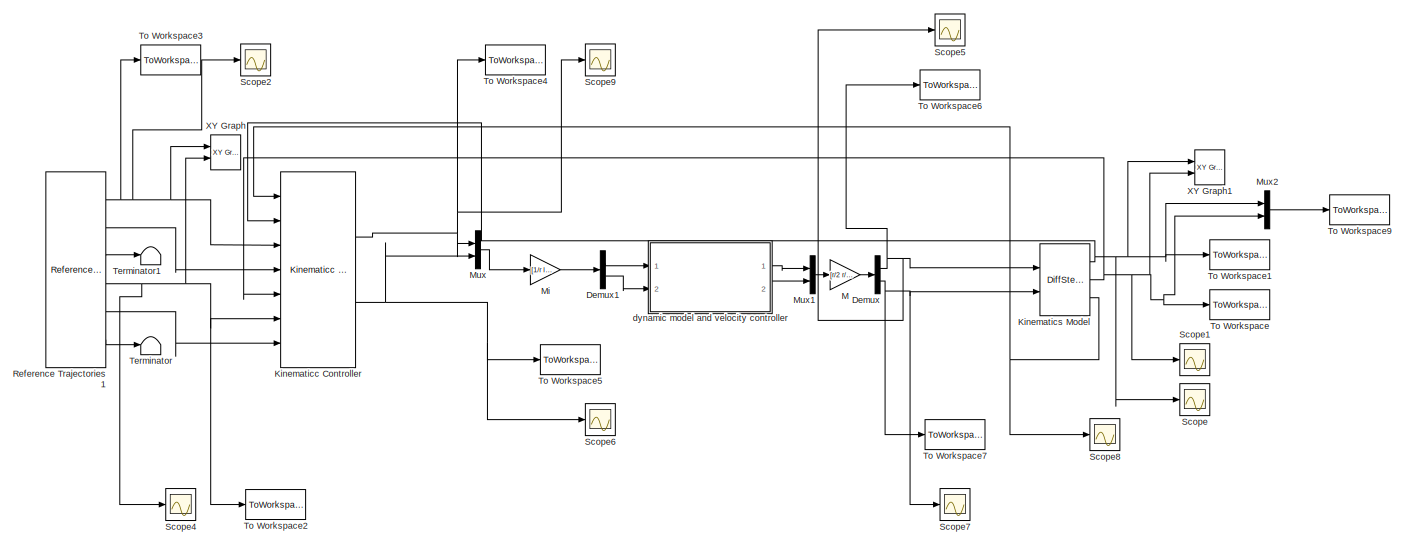
[diagram: root canvas - part 1/2, full width, middle band]
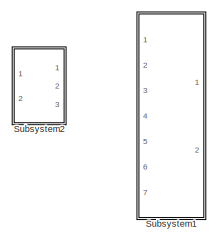
[diagram: root canvas - part 2/2, bottom left region]
MODEL slx_24f04d6664d5
KIND model
CONFIG AbsTol = auto
CONFIG EnableMultiTasking = off
CONFIG FixedStep = auto
CONFIG MaxStep = auto
CONFIG MinStep = auto
CONFIG RelTol = 1e-3
CONFIG SampleTimeConstraint = Unconstrained
CONFIG Solver = VariableStepAuto
CONFIG SolverName = VariableStepAuto
CONFIG StartTime = 0.0
CONFIG StopTime = 80
BLOCK [Reference]  Kinematics Model  REF=DiffSteer_model/DiffSteer
Kinematics
  Ports = [2, 3]
  SourceBlock = DiffSteer_model/DiffSteer\nKinematics
BLOCK [Demux] Demux
  DisplayOption = bar
  Outputs = 2
  Ports = [1, 2]
BLOCK [Demux] Demux1
  DisplayOption = bar
  Outputs = 2
  Ports = [1, 2]
BLOCK [Reference] Kinematicc Controller  REF=Controllers/Kinematicc
Controller
  Ports = [7, 2]
  SourceBlock = Controllers/Kinematicc\nController
  SourceType = Kinematic Controller
BLOCK [Gain] M
  Gain = [r/2 r/2;r/l -r/l]
  Multiplication = Matrix(K*u)
  OutDataTypeStr = Inherit: Inherit via internal rule
  ParamDataTypeStr = Inherit: Inherit via internal rule
  SaturateOnIntegerOverflow = off
BLOCK [Gain] Mi
  Gain = [1/r  l/(2*r); 1/r  -l/(2*r)]
  Multiplication = Matrix(K*u)
  OutDataTypeStr = Inherit: Inherit via internal rule
  ParamDataTypeStr = Inherit: Inherit via internal rule
  SaturateOnIntegerOverflow = off
BLOCK [Mux] Mux
  DisplayOption = bar
  Inputs = 2
  Ports = [2, 1]
BLOCK [Mux] Mux1
  DisplayOption = bar
  Inputs = 2
  Ports = [2, 1]
BLOCK [Mux] Mux2
  DisplayOption = bar
  Inputs = 2
  Ports = [2, 1]
BLOCK [Reference] Reference Trajectories1  REF=Controllers/Reference
Trajectories
  Ports = [0, 6]
  SourceBlock = Controllers/Reference\nTrajectories
  SourceType = Reference Trajectories
BLOCK [Scope] Scope
  NumInputPorts = 1
  Ports = [1]
  ScopeSpecificationString = Simulink.scopes.TimeScopeBlockCfg('CurrentConfiguration', extmgr.ConfigurationSet(extmgr.Configuration('Core','General UI',true),extmgr.Configuration('Core','Source UI',true),extmgr.Configuration('Sources','WiredSimulink',true,'DataLoggingVariableName','ScopeData1'),extmgr.Configuration('Visuals','Time Domain',true,'SerializedDisplays',{struct('MinYLimReal','-1.21331','MaxYLimReal','0.91848','YLab...<+1449ch>
BLOCK [Scope] Scope1
  NumInputPorts = 1
  Ports = [1]
  ScopeSpecificationString = Simulink.scopes.TimeScopeBlockCfg('CurrentConfiguration', extmgr.ConfigurationSet(extmgr.Configuration('Core','General UI',true),extmgr.Configuration('Core','Source UI',true),extmgr.Configuration('Sources','WiredSimulink',true,'DataLoggingVariableName','ScopeData2','DataLoggingLimitDataPoints',true,'DataLoggingMaxPoints','50000000'),extmgr.Configuration('Visuals','Time Domain',true,'SerializedDisp...<+1498ch>
BLOCK [Scope] Scope2
  NumInputPorts = 1
  Ports = [1]
  ScopeSpecificationString = Simulink.scopes.TimeScopeBlockCfg('CurrentConfiguration', extmgr.ConfigurationSet(extmgr.Configuration('Core','General UI',true),extmgr.Configuration('Core','Source UI',true),extmgr.Configuration('Sources','WiredSimulink',true,'DataLoggingVariableName','ScopeData3','DataLoggingLimitDataPoints',true,'DataLoggingMaxPoints','1000000'),extmgr.Configuration('Visuals','Time Domain',true,'SerializedDispl...<+1470ch>
BLOCK [Scope] Scope4
  NumInputPorts = 1
  Ports = [1]
  ScopeSpecificationString = Simulink.scopes.TimeScopeBlockCfg('CurrentConfiguration', extmgr.ConfigurationSet(extmgr.Configuration('Core','General UI',true),extmgr.Configuration('Core','Source UI',true),extmgr.Configuration('Sources','WiredSimulink',true,'DataLoggingVariableName','ScopeData5','DataLoggingLimitDataPoints',true,'DataLoggingMaxPoints','1000000'),extmgr.Configuration('Visuals','Time Domain',true,'SerializedDispl...<+1470ch>
BLOCK [Scope] Scope5
  NumInputPorts = 1
  Ports = [1]
  ScopeSpecificationString = Simulink.scopes.TimeScopeBlockCfg('CurrentConfiguration', extmgr.ConfigurationSet(extmgr.Configuration('Core','General UI',true),extmgr.Configuration('Core','Source UI',true),extmgr.Configuration('Sources','WiredSimulink',true,'DataLoggingVariableName','ScopeData6','DataLoggingLimitDataPoints',true,'DataLoggingMaxPoints','1000000'),extmgr.Configuration('Visuals','Time Domain',true,'SerializedDispl...<+1504ch>
BLOCK [Scope] Scope6
  NumInputPorts = 1
  Ports = [1]
  ScopeSpecificationString = Simulink.scopes.TimeScopeBlockCfg('CurrentConfiguration', extmgr.ConfigurationSet(extmgr.Configuration('Core','General UI',true),extmgr.Configuration('Core','Source UI',true),extmgr.Configuration('Sources','WiredSimulink',true,'DataLoggingVariableName','ScopeData7','DataLoggingLimitDataPoints',true,'DataLoggingMaxPoints','1000000'),extmgr.Configuration('Visuals','Time Domain',true,'SerializedDispl...<+1491ch>
BLOCK [Scope] Scope7
  NumInputPorts = 1
  Ports = [1]
  ScopeSpecificationString = Simulink.scopes.TimeScopeBlockCfg('CurrentConfiguration', extmgr.ConfigurationSet(extmgr.Configuration('Core','General UI',true),extmgr.Configuration('Core','Source UI',true),extmgr.Configuration('Sources','WiredSimulink',true,'DataLoggingVariableName','ScopeData8','DataLoggingLimitDataPoints',true,'DataLoggingMaxPoints','1000000'),extmgr.Configuration('Visuals','Time Domain',true,'SerializedDispl...<+1483ch>
BLOCK [Scope] Scope8
  NumInputPorts = 1
  Ports = [1]
  ScopeSpecificationString = Simulink.scopes.TimeScopeBlockCfg('CurrentConfiguration', extmgr.ConfigurationSet(extmgr.Configuration('Core','General UI',true),extmgr.Configuration('Core','Source UI',true),extmgr.Configuration('Sources','WiredSimulink',true,'DataLoggingVariableName','ScopeData13'),extmgr.Configuration('Visuals','Time Domain',true,'SerializedDisplays',{struct('MinYLimReal','-1.16597','MaxYLimReal','10.49355','YL...<+1458ch>
BLOCK [Scope] Scope9
  NumInputPorts = 1
  Ports = [1]
  ScopeSpecificationString = Simulink.scopes.TimeScopeBlockCfg('CurrentConfiguration', extmgr.ConfigurationSet(extmgr.Configuration('Core','General UI',true),extmgr.Configuration('Core','Source UI',true),extmgr.Configuration('Sources','WiredSimulink',true,'DataLoggingVariableName','ScopeData10','DataLoggingLimitDataPoints',true,'DataLoggingMaxPoints','1000000'),extmgr.Configuration('Visuals','Time Domain',true,'SerializedDisp...<+1521ch>
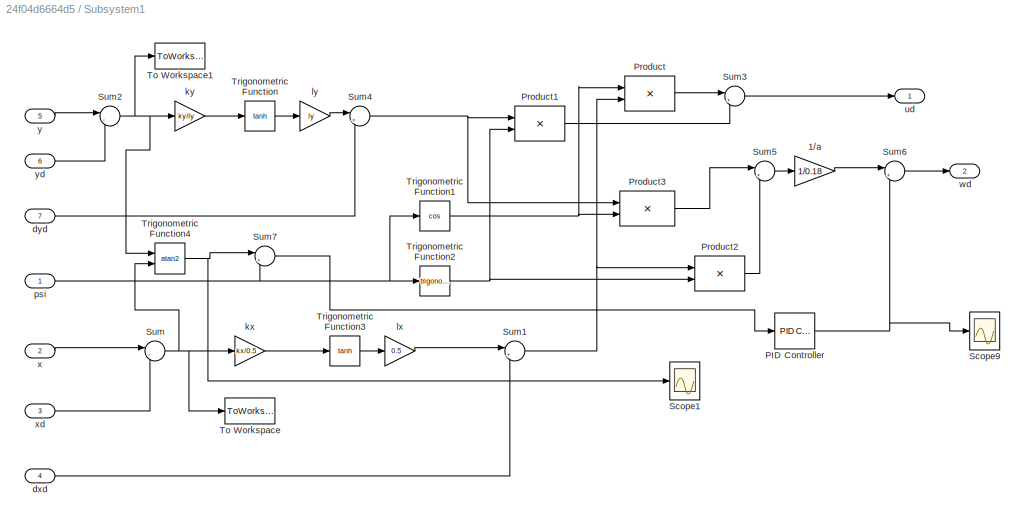
BLOCK [SubSystem] Subsystem1
  Commented = on
  Ports = [7, 2]
  RequestExecContextInheritance = off
  Variant = off
BLOCK [Gain] Subsystem1/1//a
  Commented = on
  Gain = 1/0.18
BLOCK [Reference] Subsystem1/PID Controller  REF=simulink/Continuous/PID Controller
  Ports = [1, 1]
  SourceBlock = simulink/Continuous/PID Controller
  SourceType = PID 1dof
BLOCK [Product] Subsystem1/Product
  InputSameDT = off
  Ports = [2, 1]
  RndMeth = Floor
BLOCK [Product] Subsystem1/Product1
  InputSameDT = off
  Ports = [2, 1]
  RndMeth = Floor
BLOCK [Product] Subsystem1/Product2
  InputSameDT = off
  Ports = [2, 1]
  RndMeth = Floor
BLOCK [Product] Subsystem1/Product3
  InputSameDT = off
  Ports = [2, 1]
  RndMeth = Floor
BLOCK [Scope] Subsystem1/Scope1
  NumInputPorts = 1
  Ports = [1]
  ScopeSpecificationString = Simulink.scopes.TimeScopeBlockCfg('CurrentConfiguration', extmgr.ConfigurationSet(extmgr.Configuration('Core','General UI',true),extmgr.Configuration('Core','Source UI',true),extmgr.Configuration('Sources','WiredSimulink',true,'DataLoggingVariableName','ScopeData12','DataLoggingLimitDataPoints',true,'DataLoggingMaxPoints','1000000'),extmgr.Configuration('Visuals','Time Domain',true,'SerializedDisp...<+1521ch>
BLOCK [Scope] Subsystem1/Scope9
  NumInputPorts = 1
  Ports = [1]
  ScopeSpecificationString = Simulink.scopes.TimeScopeBlockCfg('CurrentConfiguration', extmgr.ConfigurationSet(extmgr.Configuration('Core','General UI',true),extmgr.Configuration('Core','Source UI',true),extmgr.Configuration('Sources','WiredSimulink',true,'DataLoggingVariableName','ScopeData9','DataLoggingLimitDataPoints',true,'DataLoggingMaxPoints','1000000'),extmgr.Configuration('Visuals','Time Domain',true,'SerializedDispl...<+1517ch>
BLOCK [Sum] Subsystem1/Sum
  IconShape = round
  InputSameDT = off
  Inputs = |-+
  OutDataTypeStr = Inherit: Inherit via internal rule
  Ports = [2, 1]
BLOCK [Sum] Subsystem1/Sum1
  IconShape = round
  InputSameDT = off
  Inputs = |++
  OutDataTypeStr = Inherit: Inherit via internal rule
  Ports = [2, 1]
BLOCK [Sum] Subsystem1/Sum2
  IconShape = round
  InputSameDT = off
  Inputs = |-+
  OutDataTypeStr = Inherit: Inherit via internal rule
  Ports = [2, 1]
BLOCK [Sum] Subsystem1/Sum3
  IconShape = round
  InputSameDT = off
  Inputs = |++
  OutDataTypeStr = Inherit: Inherit via internal rule
  Ports = [2, 1]
BLOCK [Sum] Subsystem1/Sum4
  IconShape = round
  InputSameDT = off
  Inputs = |++
  OutDataTypeStr = Inherit: Inherit via internal rule
  Ports = [2, 1]
BLOCK [Sum] Subsystem1/Sum5
  IconShape = round
  InputSameDT = off
  Inputs = |+-
  OutDataTypeStr = Inherit: Inherit via internal rule
  Ports = [2, 1]
BLOCK [Sum] Subsystem1/Sum6
  IconShape = round
  InputSameDT = off
  Inputs = |++
  OutDataTypeStr = Inherit: Inherit via internal rule
  Ports = [2, 1]
BLOCK [Sum] Subsystem1/Sum7
  IconShape = round
  InputSameDT = off
  Inputs = |+-
  OutDataTypeStr = Inherit: Inherit via internal rule
  Ports = [2, 1]
BLOCK [ToWorkspace] Subsystem1/To Workspace
  MaxDataPoints = inf
  Ports = [1]
  SampleTime = -1
  VariableName = erro_x1c
BLOCK [ToWorkspace] Subsystem1/To Workspace1
  MaxDataPoints = inf
  Ports = [1]
  SampleTime = -1
  VariableName = erro_y1c
BLOCK [Trigonometry] Subsystem1/Trigonometric Function
  Operator = tanh
  Ports = [1, 1]
BLOCK [Trigonometry] Subsystem1/Trigonometric Function1
  Operator = cos
  Ports = [1, 1]
BLOCK [Trigonometry] Subsystem1/Trigonometric Function2
  Ports = [1, 1]
BLOCK [Trigonometry] Subsystem1/Trigonometric Function3
  Operator = tanh
  Ports = [1, 1]
BLOCK [Trigonometry] Subsystem1/Trigonometric Function4
  Operator = atan2
  Ports = [2, 1]
BLOCK [Inport] Subsystem1/dxd
  IconDisplay = Port number
  Port = 4
BLOCK [Inport] Subsystem1/dyd
  IconDisplay = Port number
  Port = 7
BLOCK [Gain] Subsystem1/kx
  Gain = kx/0.5
BLOCK [Gain] Subsystem1/ky
  Gain = ky/ly
BLOCK [Gain] Subsystem1/lx
  Gain = 0.5
BLOCK [Gain] Subsystem1/ly
  Gain = ly
BLOCK [Inport] Subsystem1/psi
  IconDisplay = Port number
BLOCK [Outport] Subsystem1/ud
  IconDisplay = Port number
BLOCK [Outport] Subsystem1/wd
  IconDisplay = Port number
  Port = 2
BLOCK [Inport] Subsystem1/x
  IconDisplay = Port number
  Port = 2
BLOCK [Inport] Subsystem1/xd
  IconDisplay = Port number
  Port = 3
BLOCK [Inport] Subsystem1/y
  IconDisplay = Port number
  Port = 5
BLOCK [Inport] Subsystem1/yd
  IconDisplay = Port number
  Port = 6
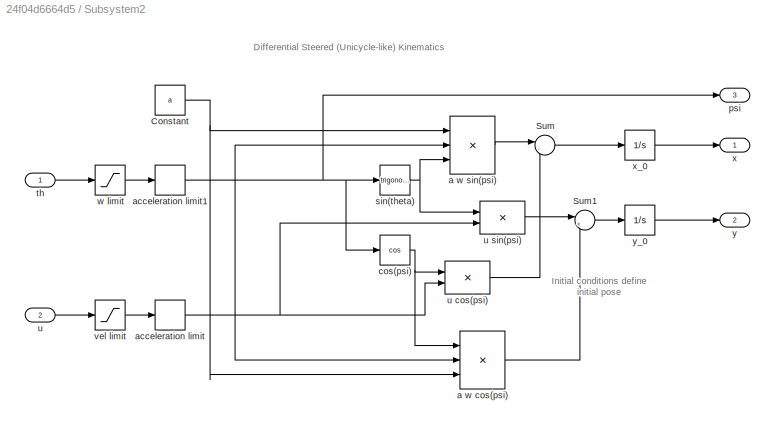
BLOCK [SubSystem] Subsystem2
  Commented = on
  Ports = [2, 3]
  RequestExecContextInheritance = off
  Variant = off
BLOCK [Constant] Subsystem2/Constant
  Value = a
BLOCK [Sum] Subsystem2/Sum
  IconShape = round
  InputSameDT = off
  Inputs = |-+
  OutDataTypeStr = Inherit: Inherit via internal rule
  Ports = [2, 1]
BLOCK [Sum] Subsystem2/Sum1
  IconShape = round
  InputSameDT = off
  Inputs = |++
  OutDataTypeStr = Inherit: Inherit via internal rule
  Ports = [2, 1]
BLOCK [Product] Subsystem2/a w cos(psi)
  Commented = on
  InputSameDT = off
  Inputs = 3
  Ports = [3, 1]
  RndMeth = Floor
BLOCK [Product] Subsystem2/a w sin(psi)
  Commented = on
  InputSameDT = off
  Inputs = 3
  Ports = [3, 1]
  RndMeth = Floor
BLOCK [RateLimiter] Subsystem2/acceleration limit
  Commented = through
  FallingSlewLimit = -dumax
  RisingSlewLimit = dumax
  SampleTimeMode = inherited
BLOCK [RateLimiter] Subsystem2/acceleration limit1
  Commented = through
  FallingSlewLimit = -dwmax
  RisingSlewLimit = dwmax
  SampleTimeMode = inherited
BLOCK [Trigonometry] Subsystem2/cos(psi)
  Operator = cos
  Ports = [1, 1]
BLOCK [Outport] Subsystem2/psi
  IconDisplay = Port number
  Port = 3
BLOCK [Trigonometry] Subsystem2/sin(theta)
  Ports = [1, 1]
BLOCK [Inport] Subsystem2/th 
  IconDisplay = Port number
BLOCK [Inport] Subsystem2/u
  IconDisplay = Port number
  Port = 2
BLOCK [Product] Subsystem2/u cos(psi)
  InputSameDT = off
  Ports = [2, 1]
  RndMeth = Floor
BLOCK [Product] Subsystem2/u sin(psi)
  InputSameDT = off
  Ports = [2, 1]
  RndMeth = Floor
BLOCK [Saturate] Subsystem2/vel limit
  Commented = through
  InputPortMap = u0
  LowerLimit = -umax
  Ports = [1, 1]
  UpperLimit = umax
BLOCK [Saturate] Subsystem2/w limit
  Commented = through
  InputPortMap = u0
  LowerLimit = -wmax
  Ports = [1, 1]
  UpperLimit = wmax
BLOCK [Outport] Subsystem2/x
  IconDisplay = Port number
BLOCK [Integrator] Subsystem2/x_0
  Ports = [1, 1]
BLOCK [Outport] Subsystem2/y
  IconDisplay = Port number
  Port = 2
BLOCK [Integrator] Subsystem2/y_0
  Ports = [1, 1]
BLOCK [Terminator] Terminator
BLOCK [Terminator] Terminator1
BLOCK [ToWorkspace] To Workspace
  MaxDataPoints = inf
  Ports = [1]
  SampleTime = -1
  VariableName = y
BLOCK [ToWorkspace] To Workspace1
  MaxDataPoints = inf
  Ports = [1]
  SampleTime = -1
  VariableName = x
BLOCK [ToWorkspace] To Workspace2
  MaxDataPoints = inf
  Ports = [1]
  SampleTime = -1
  VariableName = yd
BLOCK [ToWorkspace] To Workspace3
  MaxDataPoints = inf
  Ports = [1]
  SampleTime = -1
  VariableName = xd
BLOCK [ToWorkspace] To Workspace4
  MaxDataPoints = inf
  Ports = [1]
  SampleTime = -1
  VariableName = ud
BLOCK [ToWorkspace] To Workspace5
  MaxDataPoints = inf
  Ports = [1]
  SampleTime = -1
  VariableName = wd
BLOCK [ToWorkspace] To Workspace6
  MaxDataPoints = inf
  Ports = [1]
  SampleTime = -1
  VariableName = u
BLOCK [ToWorkspace] To Workspace7
  MaxDataPoints = inf
  Ports = [1]
  SampleTime = -1
  VariableName = w
BLOCK [ToWorkspace] To Workspace9
  MaxDataPoints = inf
  Ports = [1]
  SampleTime = -1
  VariableName = xy
BLOCK [Reference] XY Graph  REF=simulink/Sinks/XY Graph
  Ports = [2]
  SourceBlock = simulink/Sinks/XY Graph
  SourceType = XY scope.
BLOCK [Reference] XY Graph1  REF=simulink/Sinks/XY Graph
  Ports = [2]
  SourceBlock = simulink/Sinks/XY Graph
  SourceType = XY scope.
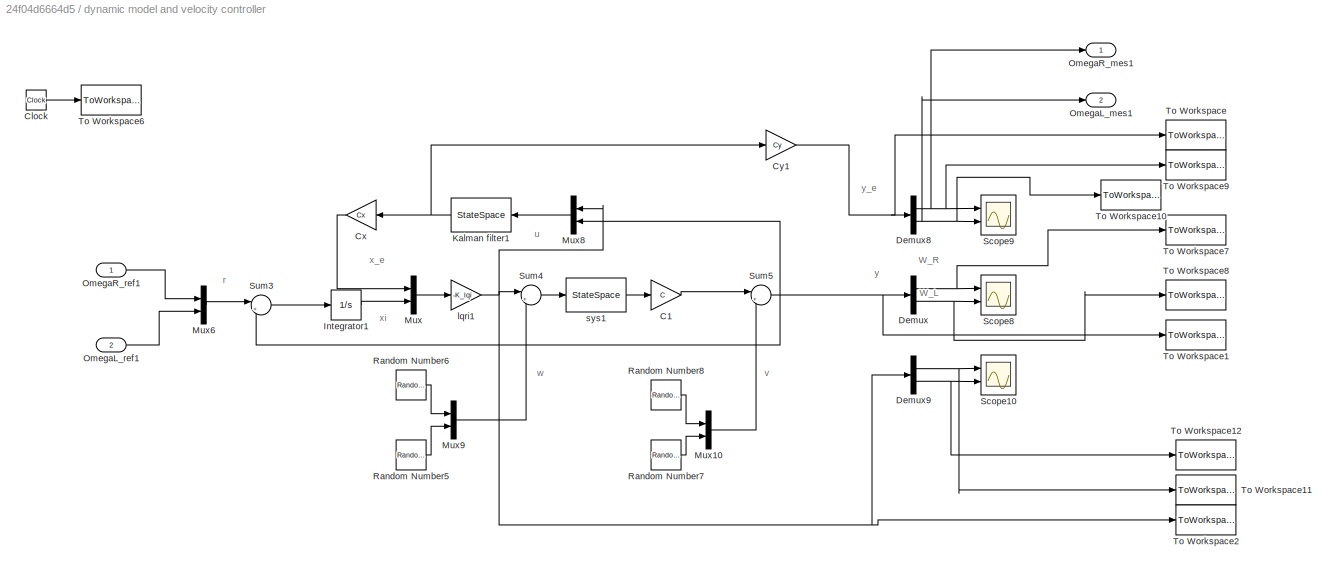
BLOCK [SubSystem] dynamic model and velocity controller
  Ports = [2, 2]
  RequestExecContextInheritance = off
  Variant = off
BLOCK [Gain] dynamic model and velocity controller/  Cx
  Gain = Cx
  Multiplication = Matrix(K*u)
  OutDataTypeStr = Inherit: Inherit via internal rule
  ParamDataTypeStr = Inherit: Inherit via internal rule
  SaturateOnIntegerOverflow = off
BLOCK [Gain] dynamic model and velocity controller/C1
  Gain = C
  Multiplication = Matrix(K*u)
  OutDataTypeStr = Inherit: Inherit via internal rule
  ParamDataTypeStr = Inherit: Inherit via internal rule
  SaturateOnIntegerOverflow = off
BLOCK [Clock] dynamic model and velocity controller/Clock
BLOCK [Gain] dynamic model and velocity controller/Cy1
  Gain = Cy
  Multiplication = Matrix(K*u)
  OutDataTypeStr = Inherit: Inherit via internal rule
  ParamDataTypeStr = Inherit: Inherit via internal rule
  SaturateOnIntegerOverflow = off
BLOCK [Demux] dynamic model and velocity controller/Demux
  DisplayOption = bar
  Outputs = 2
  Ports = [1, 2]
BLOCK [Demux] dynamic model and velocity controller/Demux8
  DisplayOption = bar
  Outputs = 2
  Ports = [1, 2]
BLOCK [Demux] dynamic model and velocity controller/Demux9
  DisplayOption = bar
  Outputs = 2
  Ports = [1, 2]
BLOCK [Integrator] dynamic model and velocity controller/Integrator1
  Ports = [1, 1]
BLOCK [StateSpace] dynamic model and velocity controller/Kalman filter1
  A = An
  B = Bn
  C = Cn
  D = Dn
  Ports = [1, 1]
  X0 = 0
BLOCK [Mux] dynamic model and velocity controller/Mux
  DisplayOption = bar
  Inputs = 2
  Ports = [2, 1]
BLOCK [Mux] dynamic model and velocity controller/Mux10
  Commented = on
  DisplayOption = bar
  Inputs = 2
  Ports = [2, 1]
BLOCK [Mux] dynamic model and velocity controller/Mux6
  DisplayOption = bar
  Inputs = 2
  Ports = [2, 1]
BLOCK [Mux] dynamic model and velocity controller/Mux8
  DisplayOption = bar
  Inputs = 2
  Ports = [2, 1]
BLOCK [Mux] dynamic model and velocity controller/Mux9
  Commented = on
  DisplayOption = bar
  Inputs = 2
  Ports = [2, 1]
BLOCK [Outport] dynamic model and velocity controller/OmegaL_mes1
  IconDisplay = Port number
  Port = 2
BLOCK [Inport] dynamic model and velocity controller/OmegaL_ref1
  IconDisplay = Port number
  Port = 2
BLOCK [Outport] dynamic model and velocity controller/OmegaR_mes1
  IconDisplay = Port number
BLOCK [Inport] dynamic model and velocity controller/OmegaR_ref1
  IconDisplay = Port number
BLOCK [RandomNumber] dynamic model and velocity controller/Random Number5
  Commented = on
  SampleTime = 0.01
  Seed = 40
  Variance = 0.1
BLOCK [RandomNumber] dynamic model and velocity controller/Random Number6
  Commented = on
  SampleTime = 0.01
  Seed = 25
  Variance = 0.1
BLOCK [RandomNumber] dynamic model and velocity controller/Random Number7
  Commented = on
  SampleTime = 0.01
  Seed = 30
  Variance = 0.1
BLOCK [RandomNumber] dynamic model and velocity controller/Random Number8
  Commented = on
  SampleTime = 0.01
  Seed = 20
  Variance = 0.1
BLOCK [Scope] dynamic model and velocity controller/Scope10
  NumInputPorts = 2
  Ports = [2]
  ScopeSpecificationString = Simulink.scopes.TimeScopeBlockCfg('CurrentConfiguration', extmgr.ConfigurationSet(extmgr.Configuration('Core','General UI',true),extmgr.Configuration('Core','Source UI',true),extmgr.Configuration('Sources','WiredSimulink',true,'DataLoggingVariableName','ScopeData1'),extmgr.Configuration('Visuals','Time Domain',true,'SerializedDisplays',{struct('MinYLimReal','-1.51293','MaxYLimReal','12.1534','YLab...<+1405ch>
BLOCK [Scope] dynamic model and velocity controller/Scope8
  NumInputPorts = 2
  Ports = [2]
  ScopeSpecificationString = Simulink.scopes.TimeScopeBlockCfg('CurrentConfiguration', extmgr.ConfigurationSet(extmgr.Configuration('Core','General UI',true),extmgr.Configuration('Core','Source UI',true),extmgr.Configuration('Sources','WiredSimulink',true,'DataLoggingVariableName','ScopeData3'),extmgr.Configuration('Visuals','Time Domain',true,'SerializedDisplays',{struct('MinYLimReal','-0.87862','MaxYLimReal','7.9076','YLabe...<+1424ch>
BLOCK [Scope] dynamic model and velocity controller/Scope9
  NumInputPorts = 2
  Ports = [2]
  ScopeSpecificationString = Simulink.scopes.TimeScopeBlockCfg('CurrentConfiguration', extmgr.ConfigurationSet(extmgr.Configuration('Core','General UI',true),extmgr.Configuration('Core','Source UI',true),extmgr.Configuration('Sources','WiredSimulink',true,'DataLoggingVariableName','ScopeData4'),extmgr.Configuration('Visuals','Time Domain',true,'SerializedDisplays',{struct('MinYLimReal','-0.87862','MaxYLimReal','7.9076','YLabe...<+1401ch>
BLOCK [Sum] dynamic model and velocity controller/Sum3
  IconShape = round
  InputSameDT = off
  Inputs = |+-
  OutDataTypeStr = Inherit: Inherit via internal rule
  Ports = [2, 1]
  SaturateOnIntegerOverflow = off
BLOCK [Sum] dynamic model and velocity controller/Sum4
  IconShape = round
  InputSameDT = off
  Inputs = |++
  OutDataTypeStr = Inherit: Inherit via internal rule
  Ports = [2, 1]
  SaturateOnIntegerOverflow = off
BLOCK [Sum] dynamic model and velocity controller/Sum5
  IconShape = round
  InputSameDT = off
  Inputs = |++
  OutDataTypeStr = Inherit: Inherit via internal rule
  Ports = [2, 1]
  SaturateOnIntegerOverflow = off
BLOCK [ToWorkspace] dynamic model and velocity controller/To Workspace
  FixptAsFi = on
  MaxDataPoints = inf
  Ports = [1]
  SampleTime = -1
  Save2DSignal = 3-D array (concatenate along third dimension)
  VariableName = ye
BLOCK [ToWorkspace] dynamic model and velocity controller/To Workspace1
  FixptAsFi = on
  MaxDataPoints = inf
  Ports = [1]
  SampleTime = -1
  Save2DSignal = 3-D array (concatenate along third dimension)
  VariableName = y3
BLOCK [ToWorkspace] dynamic model and velocity controller/To Workspace10
  FixptAsFi = on
  MaxDataPoints = inf
  Ports = [1]
  SampleTime = -1
  Save2DSignal = 3-D array (concatenate along third dimension)
  VariableName = ye2
BLOCK [ToWorkspace] dynamic model and velocity controller/To Workspace11
  FixptAsFi = on
  MaxDataPoints = inf
  Ports = [1]
  SampleTime = -1
  Save2DSignal = 3-D array (concatenate along third dimension)
  VariableName = u1
BLOCK [ToWorkspace] dynamic model and velocity controller/To Workspace12
  FixptAsFi = on
  MaxDataPoints = inf
  Ports = [1]
  SampleTime = -1
  Save2DSignal = 3-D array (concatenate along third dimension)
  VariableName = u2
BLOCK [ToWorkspace] dynamic model and velocity controller/To Workspace2
  FixptAsFi = on
  MaxDataPoints = inf
  Ports = [1]
  SampleTime = -1
  Save2DSignal = 3-D array (concatenate along third dimension)
  VariableName = u3
BLOCK [ToWorkspace] dynamic model and velocity controller/To Workspace6
  FixptAsFi = on
  MaxDataPoints = inf
  Ports = [1]
  SampleTime = -1
  Save2DSignal = 3-D array (concatenate along third dimension)
  VariableName = t
BLOCK [ToWorkspace] dynamic model and velocity controller/To Workspace7
  FixptAsFi = on
  MaxDataPoints = inf
  Ports = [1]
  SampleTime = -1
  Save2DSignal = 3-D array (concatenate along third dimension)
  VariableName = y1
BLOCK [ToWorkspace] dynamic model and velocity controller/To Workspace8
  FixptAsFi = on
  MaxDataPoints = inf
  Ports = [1]
  SampleTime = -1
  Save2DSignal = 3-D array (concatenate along third dimension)
  VariableName = y2
BLOCK [ToWorkspace] dynamic model and velocity controller/To Workspace9
  FixptAsFi = on
  MaxDataPoints = inf
  Ports = [1]
  SampleTime = -1
  Save2DSignal = 3-D array (concatenate along third dimension)
  VariableName = ye1
BLOCK [Gain] dynamic model and velocity controller/lqri1
  Gain = -K_lqi
  Multiplication = Matrix(K*u)
  OutDataTypeStr = Inherit: Inherit via internal rule
  ParamDataTypeStr = Inherit: Inherit via internal rule
  SaturateOnIntegerOverflow = off
BLOCK [StateSpace] dynamic model and velocity controller/sys1
  A = A
  B = B
  C = eye(4)
  D = zeros(4,2)
  Ports = [1, 1]
  X0 = 0
ANNOTATION Subsystem2: Differential Steered (Unicycle-like) Kinematics
ANNOTATION Subsystem2: Initial conditions define initial pose
ANNOTATION dynamic model and velocity controller: W_L
ANNOTATION dynamic model and velocity controller: W_R
ANNOTATION dynamic model and velocity controller: r
ANNOTATION dynamic model and velocity controller: u
ANNOTATION dynamic model and velocity controller: v
ANNOTATION dynamic model and velocity controller: w
ANNOTATION dynamic model and velocity controller: x_e
ANNOTATION dynamic model and velocity controller: xi
ANNOTATION dynamic model and velocity controller: y
ANNOTATION dynamic model and velocity controller: y_e
NET  Kinematics Model:1 -> Kinematicc Controller:2, Mux2:1, Scope:1, To Workspace1:1, XY Graph1:1
NET  Kinematics Model:2 -> Kinematicc Controller:5, Mux2:2, Scope1:1, To Workspace:1, XY Graph1:2
NET  Kinematics Model:3 -> Kinematicc Controller:1, Scope8:1
LINE Demux1:1 -> dynamic model and velocity controller:1
LINE Demux1:2 -> dynamic model and velocity controller:2
NET Demux:1 ->  Kinematics Model:1, Scope5:1, To Workspace6:1
NET Demux:2 ->  Kinematics Model:2, Scope7:1, To Workspace7:1
NET Kinematicc Controller:1 -> Mux:1, Scope9:1, To Workspace4:1
NET Kinematicc Controller:2 -> Mux:2, Scope6:1, To Workspace5:1
LINE M:1 -> Demux:1
LINE Mi:1 -> Demux1:1
LINE Mux1:1 -> M:1
LINE Mux2:1 -> To Workspace9:1
LINE Mux:1 -> Mi:1
NET Reference Trajectories1:1 -> Kinematicc Controller:3, Scope2:1, To Workspace3:1, XY Graph:1
LINE Reference Trajectories1:2 -> Kinematicc Controller:4
LINE Reference Trajectories1:3 -> Terminator1:1
NET Reference Trajectories1:4 -> Kinematicc Controller:6, Scope4:1, To Workspace2:1, XY Graph:2
LINE Reference Trajectories1:5 -> Kinematicc Controller:7
LINE Reference Trajectories1:6 -> Terminator:1
LINE Subsystem1/1//a:1 -> Subsystem1/Sum6:1
NET Subsystem1/PID Controller:1 -> Subsystem1/Scope9:1, Subsystem1/Sum6:2
LINE Subsystem1/Product1:1 -> Subsystem1/Sum3:2
LINE Subsystem1/Product2:1 -> Subsystem1/Sum5:2
LINE Subsystem1/Product3:1 -> Subsystem1/Sum5:1
LINE Subsystem1/Product:1 -> Subsystem1/Sum3:1
NET Subsystem1/Sum1:1 -> Subsystem1/Product2:1, Subsystem1/Product:2
NET Subsystem1/Sum2:1 -> Subsystem1/To Workspace1:1, Subsystem1/Trigonometric Function4:1, Subsystem1/ky:1
LINE Subsystem1/Sum3:1 -> Subsystem1/ud:1
NET Subsystem1/Sum4:1 -> Subsystem1/Product1:1, Subsystem1/Product3:1
LINE Subsystem1/Sum5:1 -> Subsystem1/1//a:1
LINE Subsystem1/Sum6:1 -> Subsystem1/wd:1
LINE Subsystem1/Sum7:1 -> Subsystem1/PID Controller:1
NET Subsystem1/Sum:1 -> Subsystem1/To Workspace:1, Subsystem1/Trigonometric Function4:2, Subsystem1/kx:1
NET Subsystem1/Trigonometric Function1:1 -> Subsystem1/Product3:2, Subsystem1/Product:1
NET Subsystem1/Trigonometric Function2:1 -> Subsystem1/Product1:2, Subsystem1/Product2:2
LINE Subsystem1/Trigonometric Function3:1 -> Subsystem1/lx:1
NET Subsystem1/Trigonometric Function4:1 -> Subsystem1/Scope1:1, Subsystem1/Sum7:1
LINE Subsystem1/Trigonometric Function:1 -> Subsystem1/ly:1
LINE Subsystem1/dxd:1 -> Subsystem1/Sum1:2
LINE Subsystem1/dyd:1 -> Subsystem1/Sum4:2
LINE Subsystem1/kx:1 -> Subsystem1/Trigonometric Function3:1
LINE Subsystem1/ky:1 -> Subsystem1/Trigonometric Function:1
LINE Subsystem1/lx:1 -> Subsystem1/Sum1:1
LINE Subsystem1/ly:1 -> Subsystem1/Sum4:1
NET Subsystem1/psi:1 -> Subsystem1/Sum7:2, Subsystem1/Trigonometric Function1:1, Subsystem1/Trigonometric Function2:1
LINE Subsystem1/x:1 -> Subsystem1/Sum:1
LINE Subsystem1/xd:1 -> Subsystem1/Sum:2
LINE Subsystem1/y:1 -> Subsystem1/Sum2:1
LINE Subsystem1/yd:1 -> Subsystem1/Sum2:2
NET Subsystem2/Constant:1 -> Subsystem2/a w cos(psi):3, Subsystem2/a w sin(psi):1
LINE Subsystem2/Sum1:1 -> Subsystem2/y_0:1
LINE Subsystem2/Sum:1 -> Subsystem2/x_0:1
LINE Subsystem2/a w cos(psi):1 -> Subsystem2/Sum1:2
LINE Subsystem2/a w sin(psi):1 -> Subsystem2/Sum:1
NET Subsystem2/acceleration limit1:1 -> Subsystem2/a w cos(psi):2, Subsystem2/a w sin(psi):2, Subsystem2/cos(psi):1, Subsystem2/psi:1, Subsystem2/sin(theta):1
NET Subsystem2/acceleration limit:1 -> Subsystem2/u cos(psi):2, Subsystem2/u sin(psi):2
NET Subsystem2/cos(psi):1 -> Subsystem2/a w cos(psi):1, Subsystem2/u cos(psi):1
NET Subsystem2/sin(theta):1 -> Subsystem2/a w sin(psi):3, Subsystem2/u sin(psi):1
LINE Subsystem2/th :1 -> Subsystem2/w limit:1
LINE Subsystem2/u cos(psi):1 -> Subsystem2/Sum:2
LINE Subsystem2/u sin(psi):1 -> Subsystem2/Sum1:1
LINE Subsystem2/u:1 -> Subsystem2/vel limit:1
LINE Subsystem2/vel limit:1 -> Subsystem2/acceleration limit:1
LINE Subsystem2/w limit:1 -> Subsystem2/acceleration limit1:1
LINE Subsystem2/x_0:1 -> Subsystem2/x:1
LINE Subsystem2/y_0:1 -> Subsystem2/y:1
LINE dynamic model and velocity controller/  Cx:1 -> dynamic model and velocity controller/Mux:1
LINE dynamic model and velocity controller/C1:1 -> dynamic model and velocity controller/Sum5:1
LINE dynamic model and velocity controller/Clock:1 -> dynamic model and velocity controller/To Workspace6:1
NET dynamic model and velocity controller/Cy1:1 -> dynamic model and velocity controller/Demux8:1, dynamic model and velocity controller/To Workspace:1
NET dynamic model and velocity controller/Demux8:1 -> dynamic model and velocity controller/OmegaR_mes1:1, dynamic model and velocity controller/Scope9:1, dynamic model and velocity controller/To Workspace9:1
NET dynamic model and velocity controller/Demux8:2 -> dynamic model and velocity controller/OmegaL_mes1:1, dynamic model and velocity controller/Scope9:2, dynamic model and velocity controller/To Workspace10:1
NET dynamic model and velocity controller/Demux9:1 -> dynamic model and velocity controller/Scope10:1, dynamic model and velocity controller/To Workspace11:1
NET dynamic model and velocity controller/Demux9:2 -> dynamic model and velocity controller/Scope10:2, dynamic model and velocity controller/To Workspace12:1
NET dynamic model and velocity controller/Demux:1 -> dynamic model and velocity controller/Scope8:1, dynamic model and velocity controller/To Workspace7:1
NET dynamic model and velocity controller/Demux:2 -> dynamic model and velocity controller/Scope8:2, dynamic model and velocity controller/To Workspace8:1
LINE dynamic model and velocity controller/Integrator1:1 -> dynamic model and velocity controller/Mux:2
NET dynamic model and velocity controller/Kalman filter1:1 -> dynamic model and velocity controller/  Cx:1, dynamic model and velocity controller/Cy1:1
LINE dynamic model and velocity controller/Mux10:1 -> dynamic model and velocity controller/Sum5:2
LINE dynamic model and velocity controller/Mux6:1 -> dynamic model and velocity controller/Sum3:1
LINE dynamic model and velocity controller/Mux8:1 -> dynamic model and velocity controller/Kalman filter1:1
LINE dynamic model and velocity controller/Mux9:1 -> dynamic model and velocity controller/Sum4:2
LINE dynamic model and velocity controller/Mux:1 -> dynamic model and velocity controller/lqri1:1
LINE dynamic model and velocity controller/OmegaL_ref1:1 -> dynamic model and velocity controller/Mux6:2
LINE dynamic model and velocity controller/OmegaR_ref1:1 -> dynamic model and velocity controller/Mux6:1
LINE dynamic model and velocity controller/Random Number5:1 -> dynamic model and velocity controller/Mux9:2
LINE dynamic model and velocity controller/Random Number6:1 -> dynamic model and velocity controller/Mux9:1
LINE dynamic model and velocity controller/Random Number7:1 -> dynamic model and velocity controller/Mux10:2
LINE dynamic model and velocity controller/Random Number8:1 -> dynamic model and velocity controller/Mux10:1
LINE dynamic model and velocity controller/Sum3:1 -> dynamic model and velocity controller/Integrator1:1
LINE dynamic model and velocity controller/Sum4:1 -> dynamic model and velocity controller/sys1:1
NET dynamic model and velocity controller/Sum5:1 -> dynamic model and velocity controller/Demux:1, dynamic model and velocity controller/Mux8:2, dynamic model and velocity controller/Sum3:2, dynamic model and velocity controller/To Workspace1:1
NET dynamic model and velocity controller/lqri1:1 -> dynamic model and velocity controller/Demux9:1, dynamic model and velocity controller/Mux8:1, dynamic model and velocity controller/Sum4:1, dynamic model and velocity controller/To Workspace2:1
LINE dynamic model and velocity controller/sys1:1 -> dynamic model and velocity controller/C1:1
LINE dynamic model and velocity controller:1 -> Mux1:1
LINE dynamic model and velocity controller:2 -> Mux1:2
note: NET lines group one-source signal fan-out (src -> all destinations, sorted); 1:1 wires keep LINE
